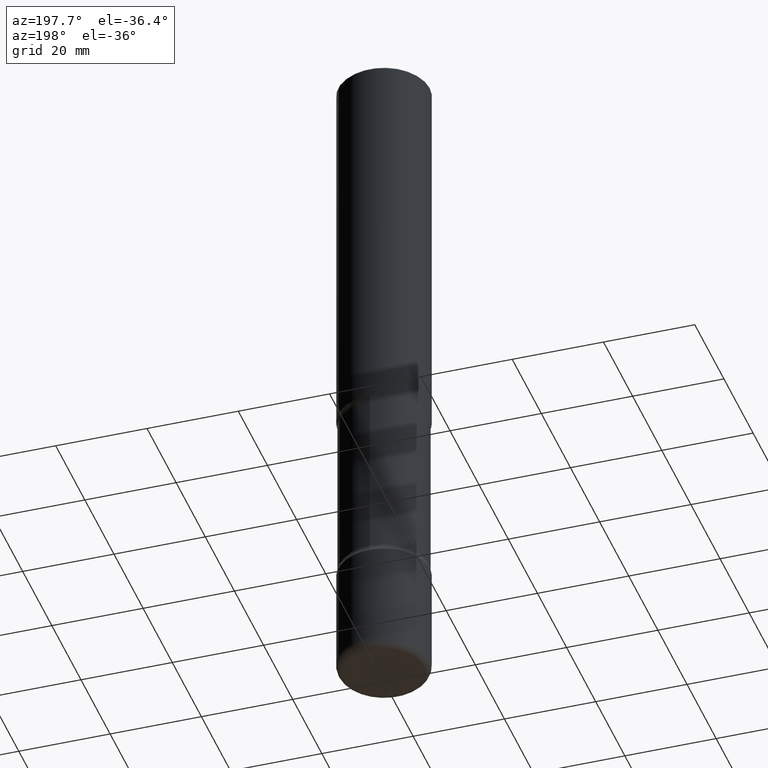
[diagram: clean part render]
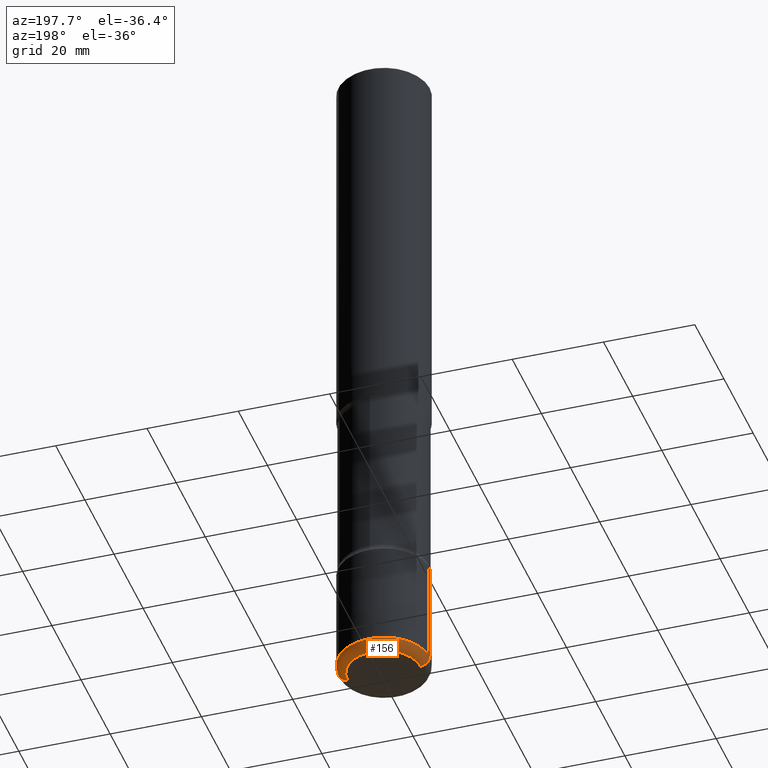
[diagram: same view with one face highlighted and labeled with its STEP entity id]
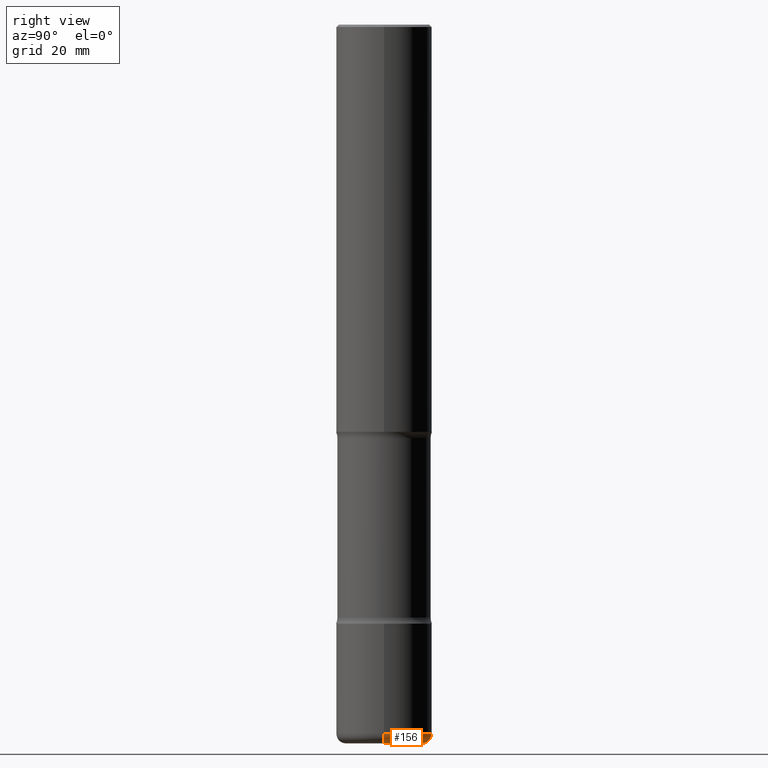
[diagram: same view with one face highlighted and labeled with its STEP entity id]
A machine part, auxiliary view. The second image highlights one B-rep face of the part: STEP entity #156.
A second angle (right view) of the same face is appended — the face is thin or edge-on in the first view.
In plain terms, the highlighted toroidal blend (fillet) surface has major radius 8.001 mm and minor (blend) radius 1.999 mm.
Its self-contained STEP definition (entity closure, byte-faithful):
#23 = ORIENTED_EDGE ( 'NONE', *, *, #432, .T. ) ;
#59 = CARTESIAN_POINT ( 'NONE',  ( 0.3150000000000001688, -2.281857629000936535E-14, -5.905499999999998195 ) ) ;
#76 = DIRECTION ( 'NONE',  ( 7.105427357601001859E-15, 1.000000000000000000, -3.491481338843145583E-15 ) ) ;
#92 = VERTEX_POINT ( 'NONE', #331 ) ;
#95 = AXIS2_PLACEMENT_3D ( 'NONE', #475, #76, #557 ) ;
#114 = CARTESIAN_POINT ( 'NONE',  ( -0.3937000000000003830, -1.754675671448371516E-14, -5.826799999999997759 ) ) ;
#132 = DIRECTION ( 'NONE',  ( -2.445468806185136597E-29, 3.491481338843145583E-15, 1.000000000000000000 ) ) ;
#133 = ORIENTED_EDGE ( 'NONE', *, *, #197, .F. ) ;
#155 = AXIS2_PLACEMENT_3D ( 'NONE', #177, #531, #287 ) ;
#156 = ADVANCED_FACE ( 'NONE', ( #470 ), #449, .T. ) ;
#160 = DIRECTION ( 'NONE',  ( 1.000000000000000000, -6.982962677686267499E-15, 0.000000000000000000 ) ) ;
#167 = ORIENTED_EDGE ( 'NONE', *, *, #528, .F. ) ;
#177 = CARTESIAN_POINT ( 'NONE',  ( 1.424925763987954893E-28, -2.034416346517123547E-14, -5.826799999999997759 ) ) ;
#182 = CARTESIAN_POINT ( 'NONE',  ( 0.3150000000000001688, -2.254379670864241201E-14, -5.826799999999997759 ) ) ;
#197 = EDGE_CURVE ( 'NONE', #399, #276, #386, .T. ) ;
#204 = CIRCLE ( 'NONE', #95, 0.07870000000000031137 ) ;
#211 = ORIENTED_EDGE ( 'NONE', *, *, #502, .T. ) ;
#227 = AXIS2_PLACEMENT_3D ( 'NONE', #182, #549, #160 ) ;
#237 = AXIS2_PLACEMENT_3D ( 'NONE', #307, #132, #482 ) ;
#255 = CARTESIAN_POINT ( 'NONE',  ( 1.444171603492631822E-28, -2.061894304653818881E-14, -5.905499999999998195 ) ) ;
#276 = VERTEX_POINT ( 'NONE', #387 ) ;
#281 = CIRCLE ( 'NONE', #237, 0.3937000000000002720 ) ;
#287 = DIRECTION ( 'NONE',  ( 1.000000000000000000, -6.982962677686269077E-15, 4.883557194083114022E-29 ) ) ;
#301 = EDGE_LOOP ( 'NONE', ( #23, #211, #167, #133 ) ) ;
#307 = CARTESIAN_POINT ( 'NONE',  ( 1.424925763987954893E-28, -2.034416346517123547E-14, -5.826799999999997759 ) ) ;
#331 = CARTESIAN_POINT ( 'NONE',  ( -0.3150000000000001688, -1.796374507168879596E-14, -5.905499999999998195 ) ) ;
#386 = CIRCLE ( 'NONE', #227, 0.07870000000000031137 ) ;
#387 = CARTESIAN_POINT ( 'NONE',  ( 0.3937000000000003830, -2.309335587137632500E-14, -5.826799999999997759 ) ) ;
#399 = VERTEX_POINT ( 'NONE', #59 ) ;
#429 = VERTEX_POINT ( 'NONE', #114 ) ;
#432 = EDGE_CURVE ( 'NONE', #399, #92, #523, .T. ) ;
#439 = AXIS2_PLACEMENT_3D ( 'NONE', #255, #508, #521 ) ;
#449 = TOROIDAL_SURFACE ( 'NONE', #155, 0.3150000000000001688, 0.07870000000000026974 ) ;
#470 = FACE_OUTER_BOUND ( 'NONE', #301, .T. ) ;
#475 = CARTESIAN_POINT ( 'NONE',  ( -0.3150000000000001688, -1.810595384752691711E-14, -5.826799999999997759 ) ) ;
#482 = DIRECTION ( 'NONE',  ( 1.000000000000000000, -6.982962677686263555E-15, 0.000000000000000000 ) ) ;
#502 = EDGE_CURVE ( 'NONE', #92, #429, #204, .T. ) ;
#508 = DIRECTION ( 'NONE',  ( -2.445468806185136597E-29, 3.491481338843145583E-15, 1.000000000000000000 ) ) ;
#521 = DIRECTION ( 'NONE',  ( 1.000000000000000000, -6.982962677686270655E-15, 0.000000000000000000 ) ) ;
#523 = CIRCLE ( 'NONE', #439, 0.3150000000000001688 ) ;
#528 = EDGE_CURVE ( 'NONE', #276, #429, #281, .T. ) ;
#531 = DIRECTION ( 'NONE',  ( -2.445468806185136597E-29, 3.491481338843145583E-15, 1.000000000000000000 ) ) ;
#549 = DIRECTION ( 'NONE',  ( -6.982962677686266711E-15, -1.000000000000000000, 3.491481338843145583E-15 ) ) ;
#557 = DIRECTION ( 'NONE',  ( -1.000000000000000000, 7.105427357601014480E-15, 0.000000000000000000 ) ) ;